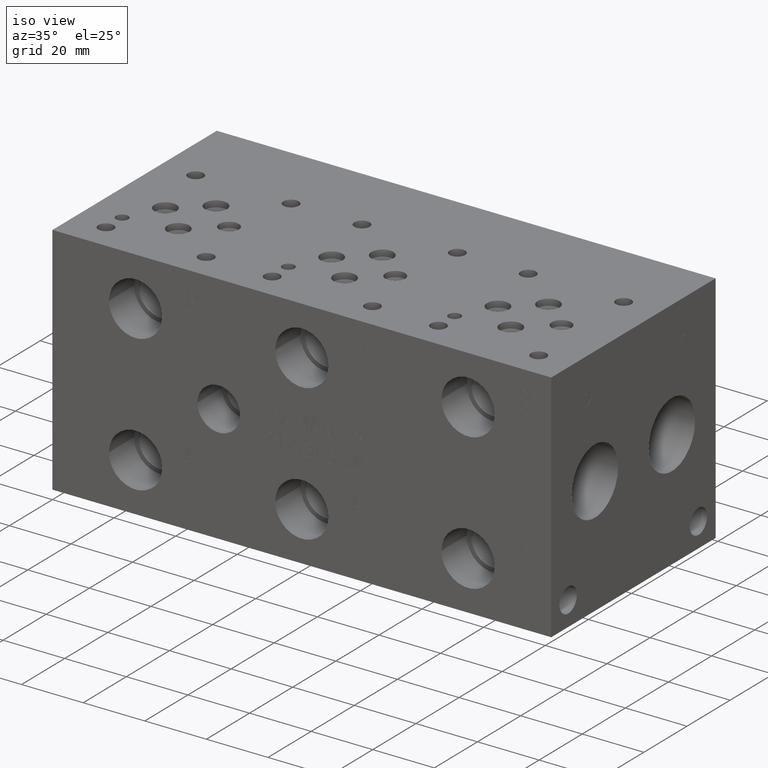
[diagram: clean part render]
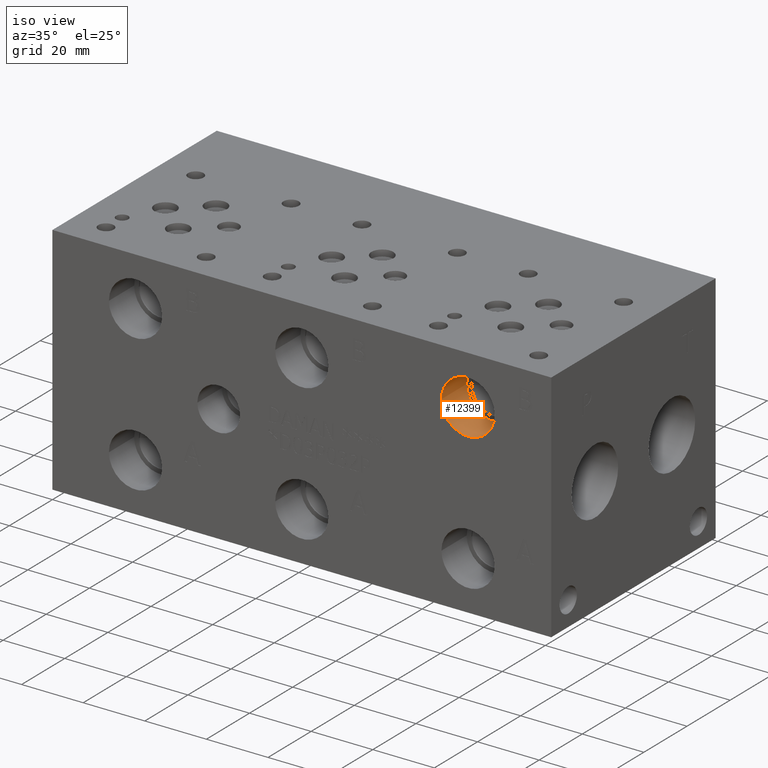
[diagram: same view with one face highlighted and labeled with its STEP entity id]
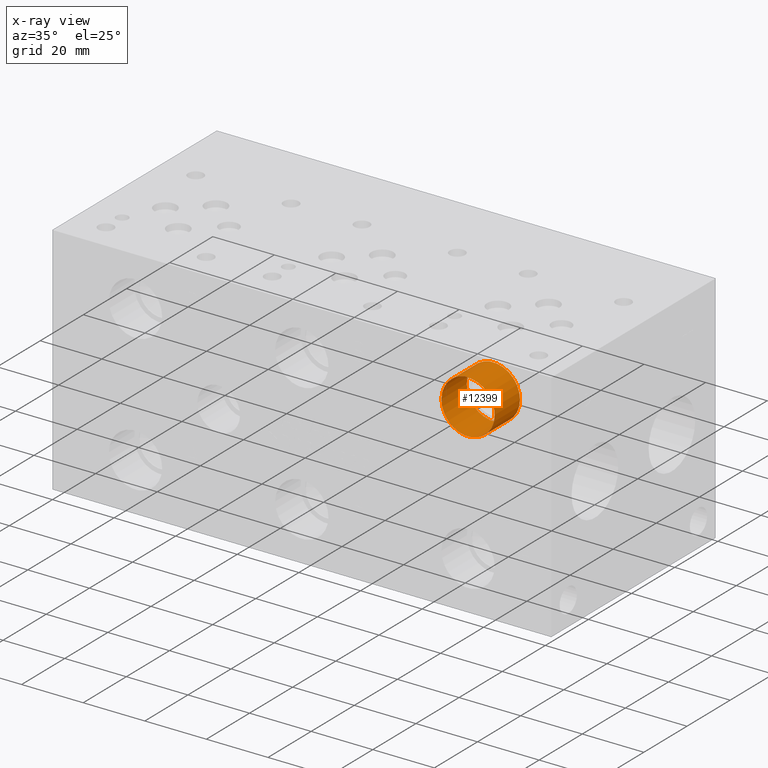
[diagram: x-ray of the same camera — body ghosted, the highlighted face saturated]
A machine part, iso view. The second image highlights one B-rep face of the part: STEP entity #12399.
The next image is the same camera in x-ray: the body ghosted, the highlighted face saturated — about 0% of this face is hidden behind the body in this view.
In plain terms, the highlighted cylindrical surface (bore or boss wall) has radius 8.6487 mm, axis along (0, -1, 0).
Its self-contained STEP definition (entity closure, byte-faithful):
#38=CYLINDRICAL_SURFACE('',#12989,8.6487);
#157=CIRCLE('',#12649,8.6487);
#158=CIRCLE('',#12650,8.6487);
#227=CIRCLE('',#12986,8.6487);
#228=CIRCLE('',#12987,8.6487);
#1410=FACE_OUTER_BOUND('',#2125,.T.);
#2125=EDGE_LOOP('',(#10688,#10689,#10690,#10691,#10692,#10693));
#3322=LINE('',#21009,#4456);
#4456=VECTOR('',#15259,8.6487);
#5436=VERTEX_POINT('',#18929);
#5437=VERTEX_POINT('',#18930);
#5863=VERTEX_POINT('',#21002);
#5864=VERTEX_POINT('',#21003);
#6842=EDGE_CURVE('',#5436,#5437,#157,.T.);
#6843=EDGE_CURVE('',#5437,#5436,#158,.T.);
#7533=EDGE_CURVE('',#5863,#5864,#227,.T.);
#7534=EDGE_CURVE('',#5864,#5863,#228,.T.);
#7536=EDGE_CURVE('',#5437,#5864,#3322,.T.);
#10688=ORIENTED_EDGE('',*,*,#6842,.F.);
#10689=ORIENTED_EDGE('',*,*,#6843,.F.);
#10690=ORIENTED_EDGE('',*,*,#7536,.T.);
#10691=ORIENTED_EDGE('',*,*,#7533,.F.);
#10692=ORIENTED_EDGE('',*,*,#7534,.F.);
#10693=ORIENTED_EDGE('',*,*,#7536,.F.);
#12399=ADVANCED_FACE('',(#1410),#38,.F.);
#12649=AXIS2_PLACEMENT_3D('',#18931,#14052,#14053);
#12650=AXIS2_PLACEMENT_3D('',#18932,#14054,#14055);
#12986=AXIS2_PLACEMENT_3D('',#21004,#15251,#15252);
#12987=AXIS2_PLACEMENT_3D('',#21005,#15253,#15254);
#12989=AXIS2_PLACEMENT_3D('',#21008,#15257,#15258);
#14052=DIRECTION('center_axis',(0.,1.,0.));
#14053=DIRECTION('ref_axis',(1.,0.,0.));
#14054=DIRECTION('center_axis',(0.,1.,0.));
#14055=DIRECTION('ref_axis',(1.,0.,0.));
#15251=DIRECTION('center_axis',(0.,-1.,0.));
#15252=DIRECTION('ref_axis',(1.,0.,0.));
#15253=DIRECTION('center_axis',(0.,-1.,0.));
#15254=DIRECTION('ref_axis',(1.,0.,0.));
#15257=DIRECTION('center_axis',(0.,-1.,0.));
#15258=DIRECTION('ref_axis',(1.,0.,0.));
#15259=DIRECTION('',(0.,1.,0.));
#18929=CARTESIAN_POINT('',(143.5735,0.,60.325));
#18930=CARTESIAN_POINT('',(126.2761,0.,60.325));
#18931=CARTESIAN_POINT('Origin',(134.9248,0.,60.325));
#18932=CARTESIAN_POINT('Origin',(134.9248,0.,60.325));
#21002=CARTESIAN_POINT('',(143.5735,11.7348,60.325));
#21003=CARTESIAN_POINT('',(126.2761,11.7348,60.325));
#21004=CARTESIAN_POINT('Origin',(134.9248,11.7348,60.325));
#21005=CARTESIAN_POINT('Origin',(134.9248,11.7348,60.325));
#21008=CARTESIAN_POINT('Origin',(134.9248,5.8674,60.325));
#21009=CARTESIAN_POINT('',(126.2761,5.8674,60.325));